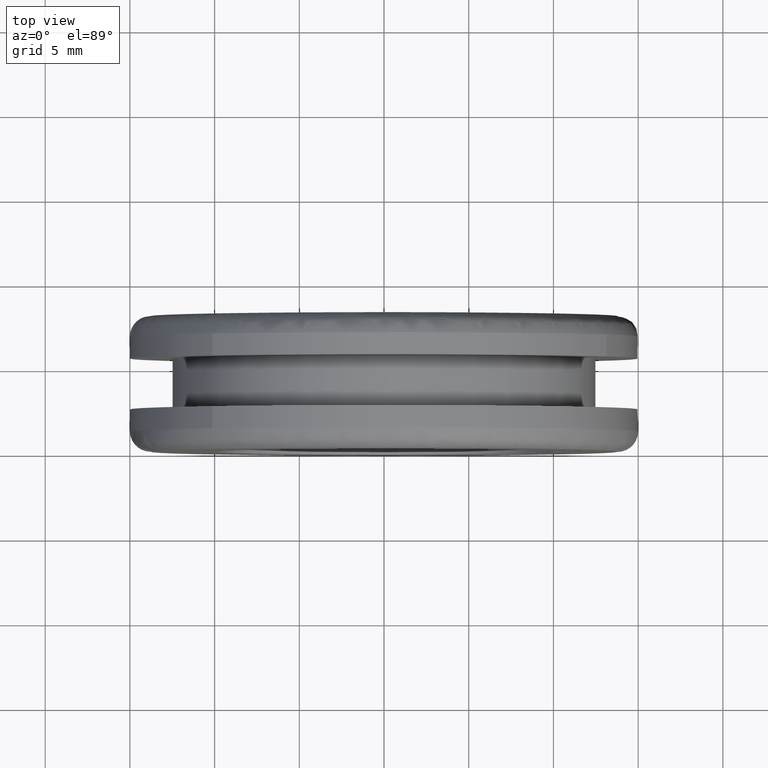
[diagram: clean part render]
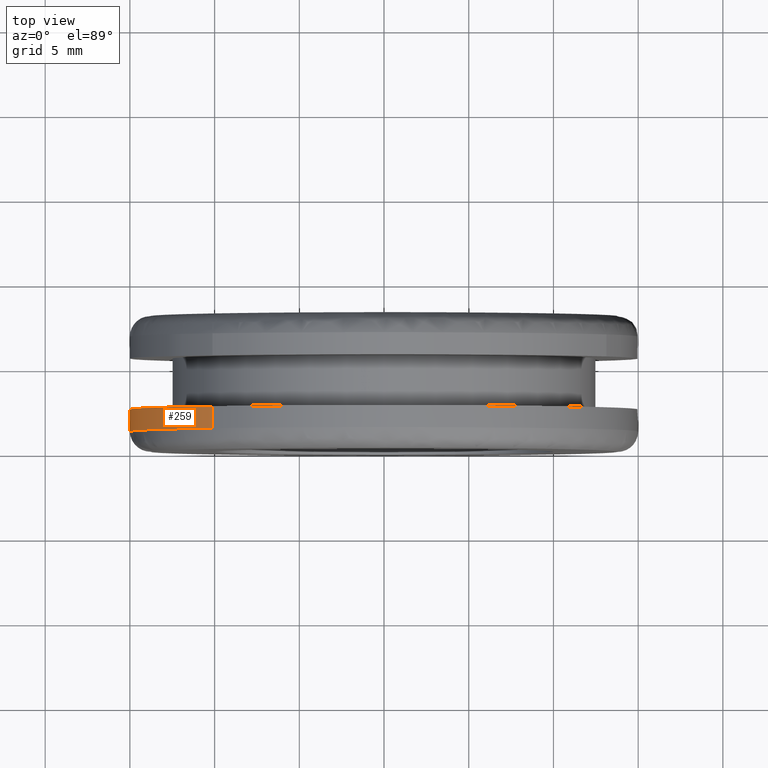
[diagram: same view with one face highlighted and labeled with its STEP entity id]
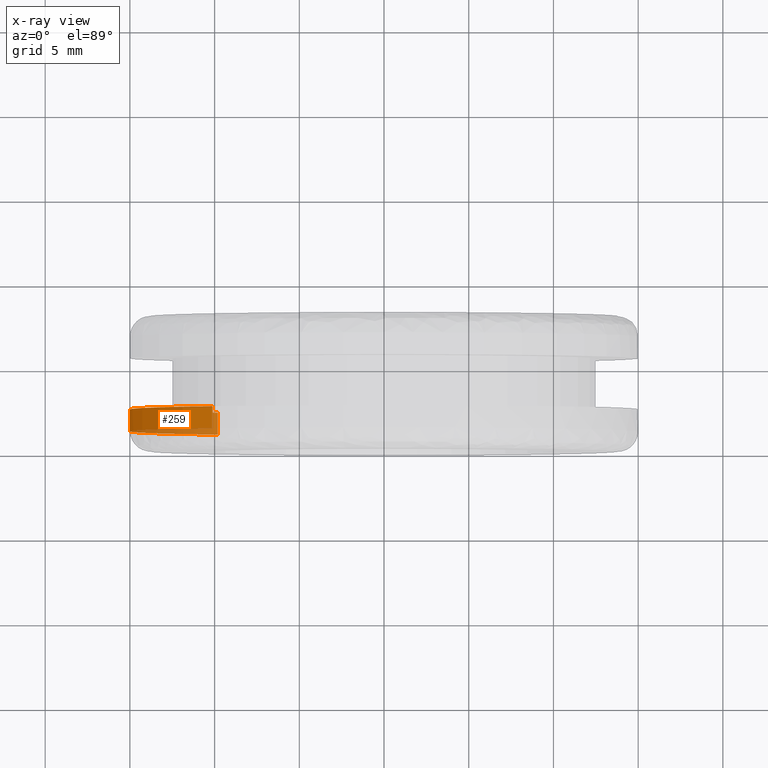
[diagram: x-ray of the same camera — body ghosted, the highlighted face saturated]
A machine part, top view. The second image highlights one B-rep face of the part: STEP entity #259.
The next image is the same camera in x-ray: the body ghosted, the highlighted face saturated — about 21% of this face is hidden behind the body in this view.
In plain terms, the highlighted face is a freeform B-spline surface patch.
Its self-contained STEP definition (entity closure, byte-faithful):
#66=CARTESIAN_POINT('',(-9.815094359560231,2.499999999999924,-11.343012065272980));
#67=VERTEX_POINT('',#66);
#100=CARTESIAN_POINT('',(-10.133852520110439,2.499999999999901,11.059160596566571));
#101=VERTEX_POINT('',#100);
#115=CARTESIAN_POINT('',(-10.133852493038910,1.199999999977785,11.059160621372980));
#116=VERTEX_POINT('',#115);
#117=CARTESIAN_POINT('',(-10.133852520110439,2.499999999999901,11.059160596566571));
#118=CARTESIAN_POINT('',(-10.133852493038910,1.199999999977785,11.059160621372980));
#119=QUASI_UNIFORM_CURVE('',1,(#117,#118),.UNSPECIFIED.,.F.,.U.);
#120=EDGE_CURVE('',#101,#116,#119,.T.);
#169=CARTESIAN_POINT('',(-9.815094365530444,1.200000000000000,-11.343012060106970));
#170=VERTEX_POINT('',#169);
#184=CARTESIAN_POINT('',(-9.815094359560231,2.499999999999924,-11.343012065272980));
#185=CARTESIAN_POINT('',(-9.815094365530444,1.200000000000000,-11.343012060106970));
#186=QUASI_UNIFORM_CURVE('',1,(#184,#185),.UNSPECIFIED.,.F.,.U.);
#187=EDGE_CURVE('',#67,#170,#186,.T.);
#192=CARTESIAN_POINT('',(-10.133853114234901,2.532500000001962,11.059160052151860));
#193=CARTESIAN_POINT('',(-21.193013166386756,2.532500000001962,0.925306937916956));
#194=CARTESIAN_POINT('',(-11.059160052151860,2.532500000001962,-10.133853114234901));
#195=CARTESIAN_POINT('',(-10.472148208553694,2.532500000001962,-10.774464129381919));
#196=CARTESIAN_POINT('',(-9.815094855040568,2.532500000001963,-11.343011636534445));
#197=CARTESIAN_POINT('',(-10.133853114234901,1.166687499915348,11.059160052151860));
#198=CARTESIAN_POINT('',(-21.193013166386756,1.166687499915348,0.925306937916956));
#199=CARTESIAN_POINT('',(-11.059160052151860,1.166687499915348,-10.133853114234901));
#200=CARTESIAN_POINT('',(-10.472148208553694,1.166687499915348,-10.774464129381919));
#201=CARTESIAN_POINT('',(-9.815094855040568,1.166687499915348,-11.343011636534445));
#209=(BOUNDED_SURFACE()B_SPLINE_SURFACE(2,1,((#192,#197),(#193,#198),(#194,#199),(#195,#200),(#196,#201)),.UNSPECIFIED.,.F.,.F.,.U.)B_SPLINE_SURFACE_WITH_KNOTS((3,2,3),(2,2),(0.0,24.852813742385688,26.841038841776552),(0.0,1.0),.UNSPECIFIED.)GEOMETRIC_REPRESENTATION_ITEM()RATIONAL_B_SPLINE_SURFACE(((1.0,1.0),(0.707106781186548,0.707106781186548),(1.0,1.0),(0.976568542494924,0.976568542494924),(0.956886118190660,0.956886118190660)))REPRESENTATION_ITEM('')SURFACE());
#210=CARTESIAN_POINT('',(-10.133852520110441,2.499999999999900,11.059160596566567));
#211=CARTESIAN_POINT('',(-15.000000000000005,2.499999999999901,6.600158925230537));
#212=CARTESIAN_POINT('',(-15.0,2.499999999999901,-1.928755E-016));
#213=CARTESIAN_POINT('',(-15.000000000000004,2.499999999999901,-6.856520001178020));
#214=CARTESIAN_POINT('',(-9.815094359560229,2.499999999999924,-11.343012065272983));
#222=(BOUNDED_CURVE()B_SPLINE_CURVE(2,(#210,#211,#212,#213,#214),.UNSPECIFIED.,.F.,.U.)B_SPLINE_CURVE_WITH_KNOTS((3,2,3),(0.618415192864190,0.750000000000000,0.885882133147832),.UNSPECIFIED.)CURVE()GEOMETRIC_REPRESENTATION_ITEM()RATIONAL_B_SPLINE_CURVE((0.853959782840026,0.845838809164180,1.0,0.840804178572373,0.854663299575205))REPRESENTATION_ITEM(''));
#223=EDGE_CURVE('',#101,#67,#222,.T.);
#224=ORIENTED_EDGE('',*,*,#223,.T.);
#225=ORIENTED_EDGE('',*,*,#187,.T.);
#226=CARTESIAN_POINT('',(-14.995262839249479,1.199999999917460,0.376951431650666));
#227=VERTEX_POINT('',#226);
#228=CARTESIAN_POINT('',(-14.995262839249481,1.199999999917460,0.376951431650666));
#229=CARTESIAN_POINT('',(-15.000000000000002,1.200000000000000,0.188505481851298));
#230=CARTESIAN_POINT('',(-15.0,1.200000000000000,-1.928755E-016));
#231=CARTESIAN_POINT('',(-14.999999999999996,1.200000000000000,-6.856519991633413));
#232=CARTESIAN_POINT('',(-9.815094365530444,1.200000000000000,-11.343012060106965));
#240=(BOUNDED_CURVE()B_SPLINE_CURVE(2,(#228,#229,#230,#231,#232),.UNSPECIFIED.,.F.,.U.)B_SPLINE_CURVE_WITH_KNOTS((3,2,3),(0.745579891769793,0.750000000000000,0.885882132988790),.UNSPECIFIED.)CURVE()GEOMETRIC_REPRESENTATION_ITEM()RATIONAL_B_SPLINE_CURVE((0.989826157681544,0.994821521091804,1.0,0.840804178758702,0.854663299542762))REPRESENTATION_ITEM(''));
#241=EDGE_CURVE('',#227,#170,#240,.T.);
#242=ORIENTED_EDGE('',*,*,#241,.F.);
#243=CARTESIAN_POINT('',(-10.133852493038908,1.199999999977785,11.059160621372975));
#244=CARTESIAN_POINT('',(-14.835023439329238,1.199999999953440,6.751332100486773));
#245=CARTESIAN_POINT('',(-14.995262839249481,1.199999999917460,0.376951431650666));
#253=(BOUNDED_CURVE()B_SPLINE_CURVE(2,(#243,#244,#245),.UNSPECIFIED.,.F.,.U.)B_SPLINE_CURVE_WITH_KNOTS((3,3),(0.618415192125124,0.745579891769794),.UNSPECIFIED.)CURVE()GEOMETRIC_REPRESENTATION_ITEM()RATIONAL_B_SPLINE_CURVE((0.853959782931252,0.846111602607868,0.989826157681545))REPRESENTATION_ITEM(''));
#254=EDGE_CURVE('',#116,#227,#253,.T.);
#255=ORIENTED_EDGE('',*,*,#254,.F.);
#256=ORIENTED_EDGE('',*,*,#120,.F.);
#257=EDGE_LOOP('',(#224,#225,#242,#255,#256));
#258=FACE_OUTER_BOUND('',#257,.T.);
#259=ADVANCED_FACE('',(#258),#209,.T.);